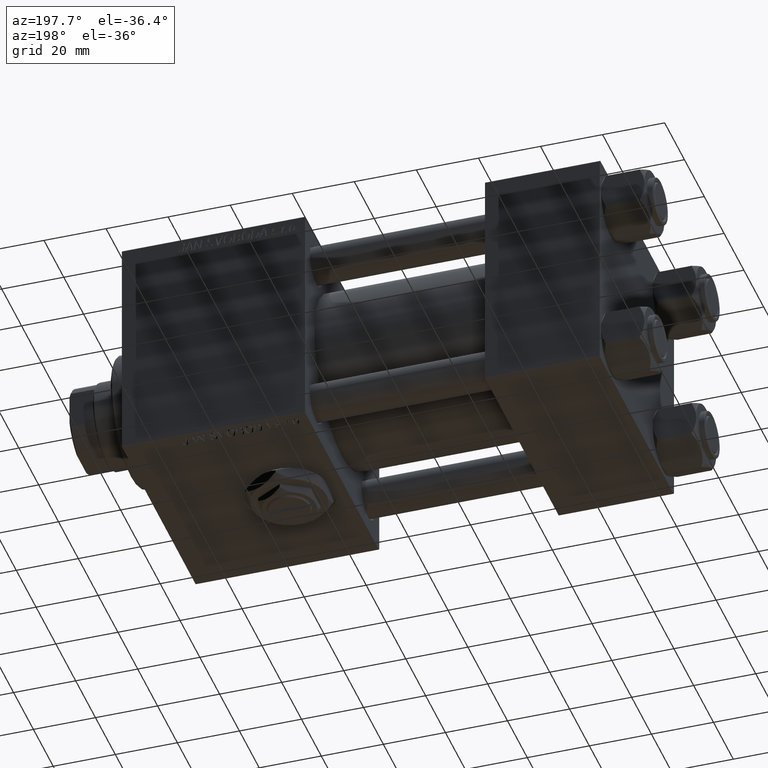
[diagram: clean part render]
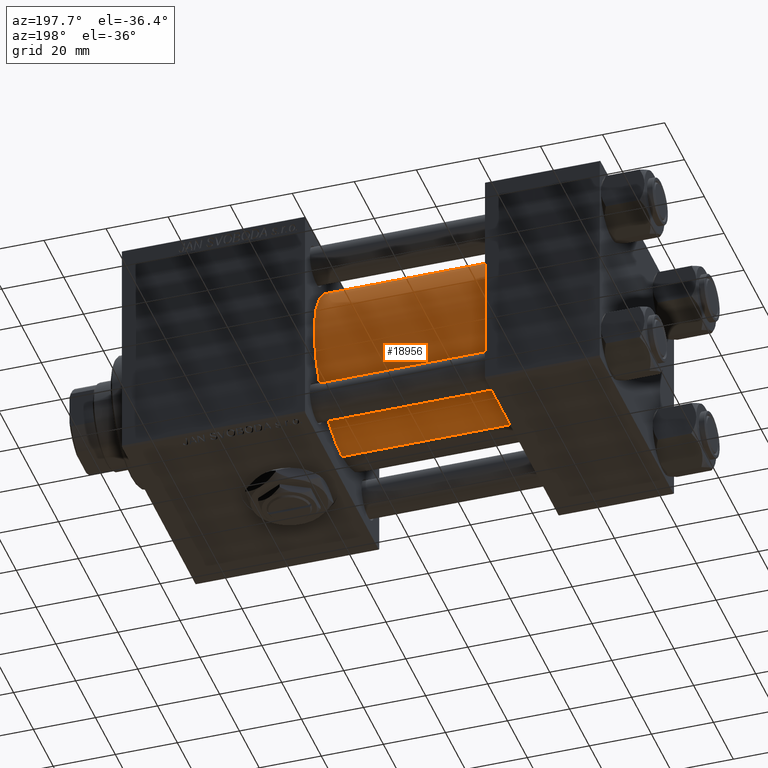
[diagram: same view with one face highlighted and labeled with its STEP entity id]
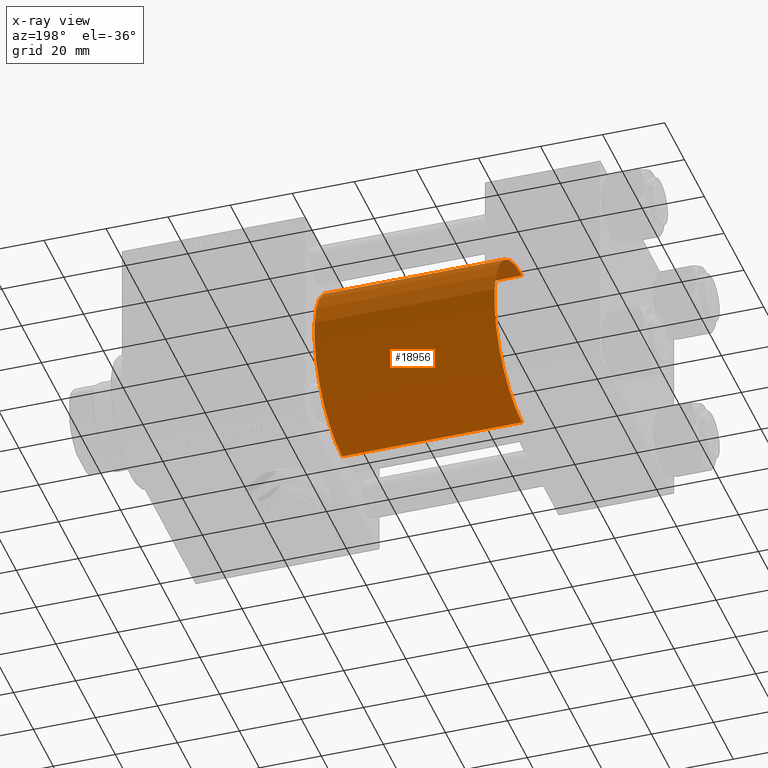
[diagram: x-ray of the same camera — body ghosted, the highlighted face saturated]
A machine part, auxiliary view. The second image highlights one B-rep face of the part: STEP entity #18956.
The next image is the same camera in x-ray: the body ghosted, the highlighted face saturated — about 1% of this face is hidden behind the body in this view.
In plain terms, the highlighted cylindrical surface (partial cylindrical patch) has radius 28 mm, axis along (-1, -0, -0).
Its self-contained STEP definition (entity closure, byte-faithful):
#138 = LINE ( 'NONE', #19533, #42261 ) ;
#4330 = DIRECTION ( 'NONE',  ( -1.000000000000000000, -0.000000000000000000, -0.000000000000000000 ) ) ;
#5294 = VERTEX_POINT ( 'NONE', #15421 ) ;
#7587 = VERTEX_POINT ( 'NONE', #35059 ) ;
#7968 = AXIS2_PLACEMENT_3D ( 'NONE', #16890, #47407, #32899 ) ;
#10936 = LINE ( 'NONE', #19056, #29642 ) ;
#11466 = FACE_OUTER_BOUND ( 'NONE', #32916, .T. ) ;
#11814 = DIRECTION ( 'NONE',  ( 0.000000000000000000, 0.000000000000000000, 1.000000000000000000 ) ) ;
#14073 = CARTESIAN_POINT ( 'NONE',  ( 37.00000000000000000, 8.269258236473776482E-16, -28.00000000000000000 ) ) ;
#14870 = ORIENTED_EDGE ( 'NONE', *, *, #36416, .F. ) ;
#15421 = CARTESIAN_POINT ( 'NONE',  ( 95.00000000000000000, -2.602085213965210642E-15, 28.00000000000000000 ) ) ;
#15527 = CARTESIAN_POINT ( 'NONE',  ( 95.00000000000000000, -2.602085213965210642E-15, 0.000000000000000000 ) ) ;
#15748 = CARTESIAN_POINT ( 'NONE',  ( 37.00000000000000000, -2.602085213965210642E-15, 0.000000000000000000 ) ) ;
#16890 = CARTESIAN_POINT ( 'NONE',  ( 95.00000000000000000, -2.602085213965210642E-15, 0.000000000000000000 ) ) ;
#18431 = DIRECTION ( 'NONE',  ( 1.000000000000000000, 0.000000000000000000, 0.000000000000000000 ) ) ;
#18956 = ADVANCED_FACE ( 'NONE', ( #11466 ), #31403, .T. ) ;
#19056 = CARTESIAN_POINT ( 'NONE',  ( 95.00000000000000000, -2.602085213965210642E-15, 28.00000000000000000 ) ) ;
#19164 = EDGE_CURVE ( 'NONE', #7587, #5294, #40678, .T. ) ;
#19533 = CARTESIAN_POINT ( 'NONE',  ( 95.00000000000000000, 8.269258236473776482E-16, -28.00000000000000000 ) ) ;
#20475 = CIRCLE ( 'NONE', #24667, 28.00000000000000000 ) ;
#20818 = VERTEX_POINT ( 'NONE', #14073 ) ;
#20981 = CARTESIAN_POINT ( 'NONE',  ( 37.00000000000000000, -2.602085213965210642E-15, 28.00000000000000000 ) ) ;
#22956 = ORIENTED_EDGE ( 'NONE', *, *, #32996, .T. ) ;
#23519 = ORIENTED_EDGE ( 'NONE', *, *, #34547, .T. ) ;
#24667 = AXIS2_PLACEMENT_3D ( 'NONE', #15748, #47760, #11814 ) ;
#29642 = VECTOR ( 'NONE', #51854, 1000.000000000000000 ) ;
#31403 = CYLINDRICAL_SURFACE ( 'NONE', #7968, 28.00000000000000000 ) ;
#32899 = DIRECTION ( 'NONE',  ( 0.000000000000000000, 0.000000000000000000, 1.000000000000000000 ) ) ;
#32916 = EDGE_LOOP ( 'NONE', ( #40408, #22956, #23519, #14870 ) ) ;
#32996 = EDGE_CURVE ( 'NONE', #7587, #20818, #138, .T. ) ;
#34547 = EDGE_CURVE ( 'NONE', #20818, #37503, #20475, .T. ) ;
#35059 = CARTESIAN_POINT ( 'NONE',  ( 95.00000000000000000, 8.269258236473776482E-16, -28.00000000000000000 ) ) ;
#36416 = EDGE_CURVE ( 'NONE', #5294, #37503, #10936, .T. ) ;
#37503 = VERTEX_POINT ( 'NONE', #20981 ) ;
#40408 = ORIENTED_EDGE ( 'NONE', *, *, #19164, .F. ) ;
#40678 = CIRCLE ( 'NONE', #49904, 28.00000000000000000 ) ;
#42261 = VECTOR ( 'NONE', #4330, 1000.000000000000000 ) ;
#43359 = DIRECTION ( 'NONE',  ( 0.000000000000000000, 0.000000000000000000, -1.000000000000000000 ) ) ;
#47407 = DIRECTION ( 'NONE',  ( -1.000000000000000000, -0.000000000000000000, -0.000000000000000000 ) ) ;
#47760 = DIRECTION ( 'NONE',  ( 1.000000000000000000, -0.000000000000000000, 0.000000000000000000 ) ) ;
#49904 = AXIS2_PLACEMENT_3D ( 'NONE', #15527, #18431, #43359 ) ;
#51854 = DIRECTION ( 'NONE',  ( -1.000000000000000000, -0.000000000000000000, -0.000000000000000000 ) ) ;